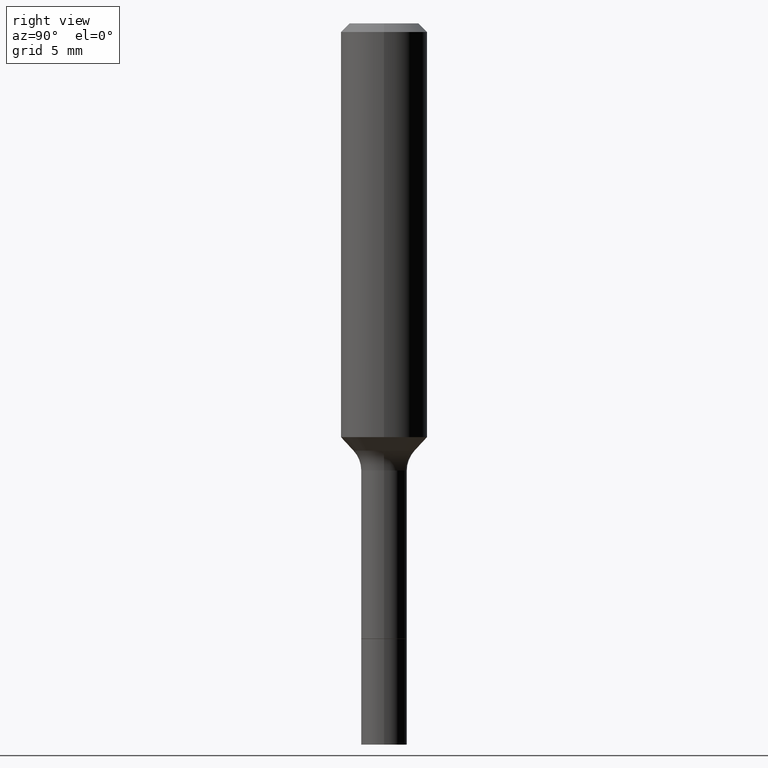
[diagram: clean part render]
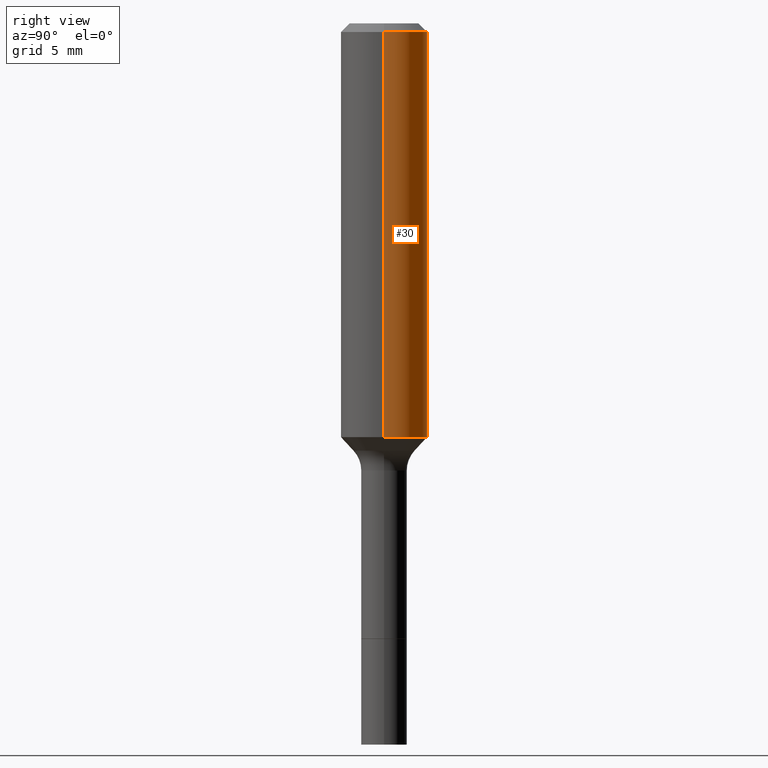
[diagram: same view with one face highlighted and labeled with its STEP entity id]
A machine part, right view. The second image highlights one B-rep face of the part: STEP entity #30.
In plain terms, the highlighted cylindrical surface (partial cylindrical patch) has radius 2.9997 mm, axis along (-0, 0, 1).
Its self-contained STEP definition (entity closure, byte-faithful):
#30 = ADVANCED_FACE ( 'NONE', ( #129 ), #324, .T. ) ;
#50 = ORIENTED_EDGE ( 'NONE', *, *, #234, .F. ) ;
#52 = LINE ( 'NONE', #217, #449 ) ;
#79 = DIRECTION ( 'NONE',  ( 1.000000000000000000, -6.982962677686266711E-15, 4.876176775795936353E-29 ) ) ;
#96 = CARTESIAN_POINT ( 'NONE',  ( 0.1180999999999999966, -9.071566814582237199E-16, -0.02362000000000014435 ) ) ;
#129 = FACE_OUTER_BOUND ( 'NONE', #227, .T. ) ;
#131 = AXIS2_PLACEMENT_3D ( 'NONE', #480, #210, #79 ) ;
#139 = VERTEX_POINT ( 'NONE', #96 ) ;
#146 = CARTESIAN_POINT ( 'NONE',  ( 2.761823116367642009E-29, -3.943151451204084867E-15, -1.129363461673432267 ) ) ;
#159 = CIRCLE ( 'NONE', #341, 0.1180999999999999966 ) ;
#192 = CARTESIAN_POINT ( 'NONE',  ( 0.1181000000000001354, -4.767839343438834707E-15, -1.129363461673432267 ) ) ;
#210 = DIRECTION ( 'NONE',  ( -2.445468806185136597E-29, 3.491481338843145583E-15, 1.000000000000000000 ) ) ;
#217 = CARTESIAN_POINT ( 'NONE',  ( 0.1181000000000000660, -8.246878922347485584E-16, 5.758764772215003944E-30 ) ) ;
#227 = EDGE_LOOP ( 'NONE', ( #382, #513, #389, #50 ) ) ;
#229 = AXIS2_PLACEMENT_3D ( 'NONE', #146, #276, #310 ) ;
#234 = EDGE_CURVE ( 'NONE', #429, #139, #52, .T. ) ;
#235 = CARTESIAN_POINT ( 'NONE',  ( 5.776197320209328408E-31, -8.246878922347560526E-17, -0.02362000000000014435 ) ) ;
#255 = EDGE_CURVE ( 'NONE', #384, #515, #494, .T. ) ;
#269 = DIRECTION ( 'NONE',  ( 1.000000000000000000, -6.982962677686266711E-15, 0.000000000000000000 ) ) ;
#276 = DIRECTION ( 'NONE',  ( -2.445468806185136597E-29, 3.491481338843145583E-15, 1.000000000000000000 ) ) ;
#288 = CARTESIAN_POINT ( 'NONE',  ( -0.1180999999999999966, -1.173659149281100979E-15, -0.02362000000000014435 ) ) ;
#310 = DIRECTION ( 'NONE',  ( 1.000000000000000000, -6.982962677686269077E-15, 0.000000000000000000 ) ) ;
#315 = EDGE_CURVE ( 'NONE', #139, #515, #159, .T. ) ;
#318 = DIRECTION ( 'NONE',  ( -2.445468806185136597E-29, 3.491481338843145583E-15, 1.000000000000000000 ) ) ;
#324 = CYLINDRICAL_SURFACE ( 'NONE', #131, 0.1181000000000000660 ) ;
#341 = AXIS2_PLACEMENT_3D ( 'NONE', #235, #318, #269 ) ;
#376 = DIRECTION ( 'NONE',  ( -2.445468806185136877E-29, 3.491481338843145188E-15, 1.000000000000000000 ) ) ;
#377 = CARTESIAN_POINT ( 'NONE',  ( -0.1181000000000000660, 8.391509709326787887E-16, -5.809262341591047287E-30 ) ) ;
#382 = ORIENTED_EDGE ( 'NONE', *, *, #398, .T. ) ;
#384 = VERTEX_POINT ( 'NONE', #500 ) ;
#389 = ORIENTED_EDGE ( 'NONE', *, *, #315, .F. ) ;
#395 = VECTOR ( 'NONE', #488, 39.37007874015748143 ) ;
#398 = EDGE_CURVE ( 'NONE', #429, #384, #460, .T. ) ;
#429 = VERTEX_POINT ( 'NONE', #192 ) ;
#449 = VECTOR ( 'NONE', #376, 39.37007874015748143 ) ;
#460 = CIRCLE ( 'NONE', #229, 0.1181000000000001354 ) ;
#480 = CARTESIAN_POINT ( 'NONE',  ( 0.000000000000000000, 0.000000000000000000, 0.000000000000000000 ) ) ;
#488 = DIRECTION ( 'NONE',  ( -2.445468806185136877E-29, 3.491481338843145188E-15, 1.000000000000000000 ) ) ;
#494 = LINE ( 'NONE', #377, #395 ) ;
#500 = CARTESIAN_POINT ( 'NONE',  ( -0.1181000000000001354, -3.104000480271405881E-15, -1.129363461673432267 ) ) ;
#513 = ORIENTED_EDGE ( 'NONE', *, *, #255, .T. ) ;
#515 = VERTEX_POINT ( 'NONE', #288 ) ;